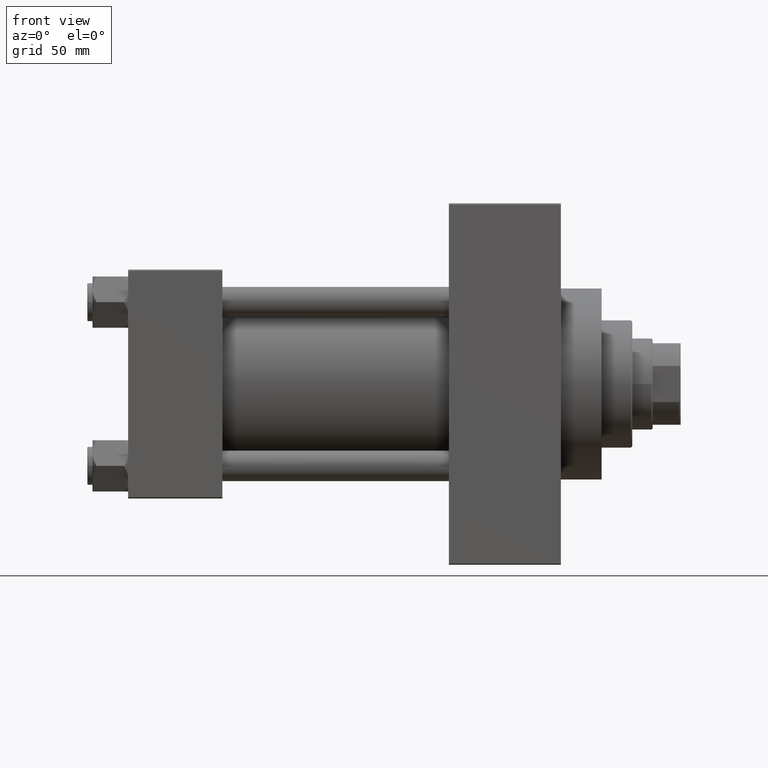
[diagram: clean part render]
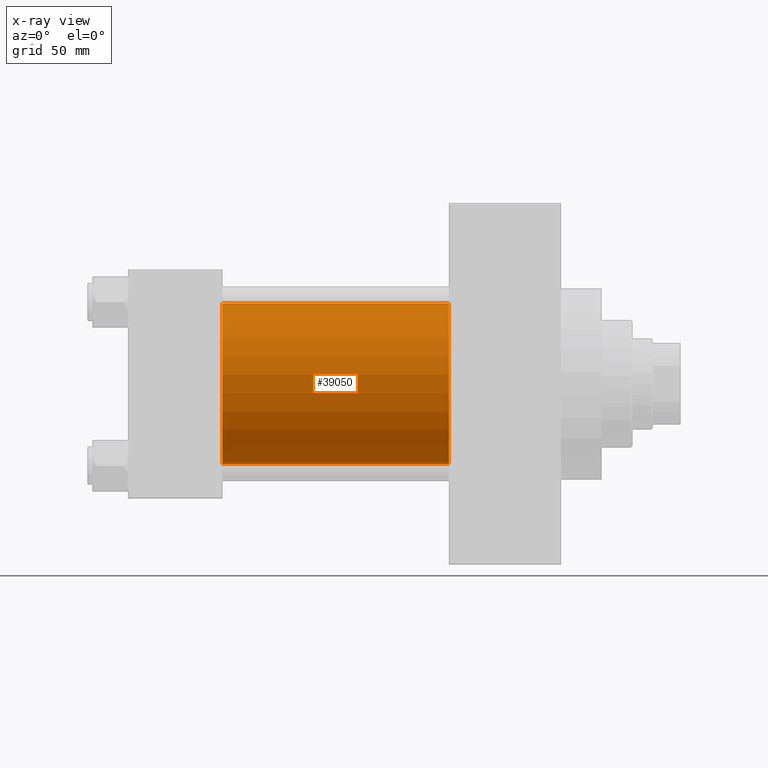
[diagram: x-ray — body ghosted, one internal face saturated and labeled with its STEP entity id]
A machine part, front view, then the same camera in x-ray: the body is ghosted and one INTERNAL B-rep face — a face not visible from any outside direction — is saturated and labeled: STEP entity #39050.
In plain terms, the highlighted cylindrical surface (partial cylindrical patch) has radius 31.5 mm, axis along (-1, -0, -0).
Its self-contained STEP definition (entity closure, byte-faithful):
#1598 = CARTESIAN_POINT ( 'NONE',  ( 37.00000000000000000, -2.602085213965210642E-15, 0.000000000000000000 ) ) ;
#5108 = LINE ( 'NONE', #45452, #43664 ) ;
#6728 = EDGE_LOOP ( 'NONE', ( #43250, #41794, #35799, #42569 ) ) ;
#8445 = DIRECTION ( 'NONE',  ( 1.000000000000000000, 0.000000000000000000, 0.000000000000000000 ) ) ;
#10494 = EDGE_CURVE ( 'NONE', #30532, #19623, #22818, .T. ) ;
#11496 = VERTEX_POINT ( 'NONE', #40673 ) ;
#12113 = DIRECTION ( 'NONE',  ( 0.000000000000000000, 0.000000000000000000, 1.000000000000000000 ) ) ;
#12512 = DIRECTION ( 'NONE',  ( 0.000000000000000000, 0.000000000000000000, -1.000000000000000000 ) ) ;
#16807 = AXIS2_PLACEMENT_3D ( 'NONE', #31190, #44798, #12113 ) ;
#19623 = VERTEX_POINT ( 'NONE', #29479 ) ;
#21421 = LINE ( 'NONE', #32861, #35177 ) ;
#22818 = CIRCLE ( 'NONE', #44883, 31.50000000000000000 ) ;
#23095 = FACE_OUTER_BOUND ( 'NONE', #6728, .T. ) ;
#23888 = DIRECTION ( 'NONE',  ( -1.000000000000000000, -0.000000000000000000, -0.000000000000000000 ) ) ;
#29479 = CARTESIAN_POINT ( 'NONE',  ( 126.0000000000000000, 1.255552203348951850E-15, -31.50000000000000000 ) ) ;
#30532 = VERTEX_POINT ( 'NONE', #46521 ) ;
#31190 = CARTESIAN_POINT ( 'NONE',  ( 126.0000000000000000, -2.602085213965210642E-15, 0.000000000000000000 ) ) ;
#31278 = CIRCLE ( 'NONE', #35099, 31.50000000000000000 ) ;
#32861 = CARTESIAN_POINT ( 'NONE',  ( 126.0000000000000000, 1.255552203348951850E-15, -31.50000000000000000 ) ) ;
#35011 = DIRECTION ( 'NONE',  ( 1.000000000000000000, 0.000000000000000000, 0.000000000000000000 ) ) ;
#35099 = AXIS2_PLACEMENT_3D ( 'NONE', #1598, #35011, #38122 ) ;
#35177 = VECTOR ( 'NONE', #23888, 1000.000000000000000 ) ;
#35799 = ORIENTED_EDGE ( 'NONE', *, *, #38963, .F. ) ;
#36255 = CARTESIAN_POINT ( 'NONE',  ( 37.00000000000000000, -2.602085213965210642E-15, 31.50000000000000000 ) ) ;
#37650 = CYLINDRICAL_SURFACE ( 'NONE', #16807, 31.50000000000000000 ) ;
#38122 = DIRECTION ( 'NONE',  ( 0.000000000000000000, 0.000000000000000000, -1.000000000000000000 ) ) ;
#38630 = VERTEX_POINT ( 'NONE', #36255 ) ;
#38963 = EDGE_CURVE ( 'NONE', #38630, #11496, #31278, .T. ) ;
#39050 = ADVANCED_FACE ( 'NONE', ( #23095 ), #37650, .F. ) ;
#40673 = CARTESIAN_POINT ( 'NONE',  ( 37.00000000000000000, 1.255552203348951850E-15, -31.50000000000000000 ) ) ;
#41144 = EDGE_CURVE ( 'NONE', #19623, #11496, #21421, .T. ) ;
#41794 = ORIENTED_EDGE ( 'NONE', *, *, #41144, .T. ) ;
#42569 = ORIENTED_EDGE ( 'NONE', *, *, #47175, .F. ) ;
#43250 = ORIENTED_EDGE ( 'NONE', *, *, #10494, .T. ) ;
#43664 = VECTOR ( 'NONE', #45219, 1000.000000000000000 ) ;
#44502 = CARTESIAN_POINT ( 'NONE',  ( 126.0000000000000000, -2.602085213965210642E-15, 0.000000000000000000 ) ) ;
#44798 = DIRECTION ( 'NONE',  ( -1.000000000000000000, -0.000000000000000000, -0.000000000000000000 ) ) ;
#44883 = AXIS2_PLACEMENT_3D ( 'NONE', #44502, #8445, #12512 ) ;
#45219 = DIRECTION ( 'NONE',  ( -1.000000000000000000, -0.000000000000000000, -0.000000000000000000 ) ) ;
#45452 = CARTESIAN_POINT ( 'NONE',  ( 126.0000000000000000, -2.602085213965210642E-15, 31.50000000000000000 ) ) ;
#46521 = CARTESIAN_POINT ( 'NONE',  ( 126.0000000000000000, -2.602085213965210642E-15, 31.50000000000000000 ) ) ;
#47175 = EDGE_CURVE ( 'NONE', #30532, #38630, #5108, .T. ) ;